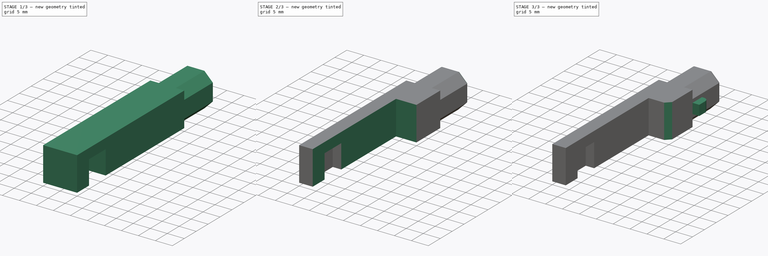
[diagram: build sequence overview — one tinted view per stage of 3, left to right]
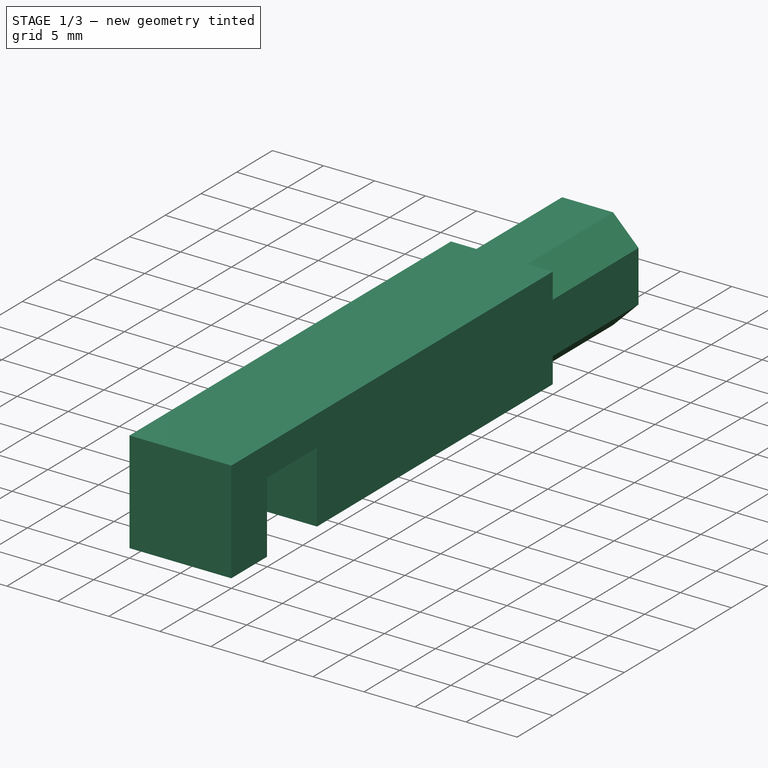
[diagram: stage 1 of 3 — iso view after this stage's code; geometry added in this stage tinted green]
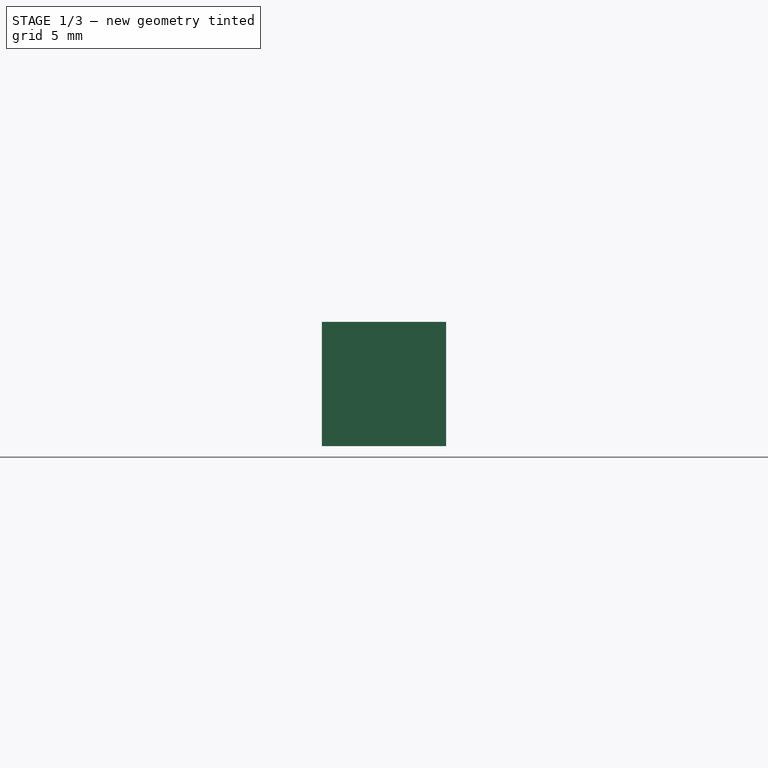
[diagram: stage 1 of 3 — front view after this stage's code; geometry added in this stage tinted green]
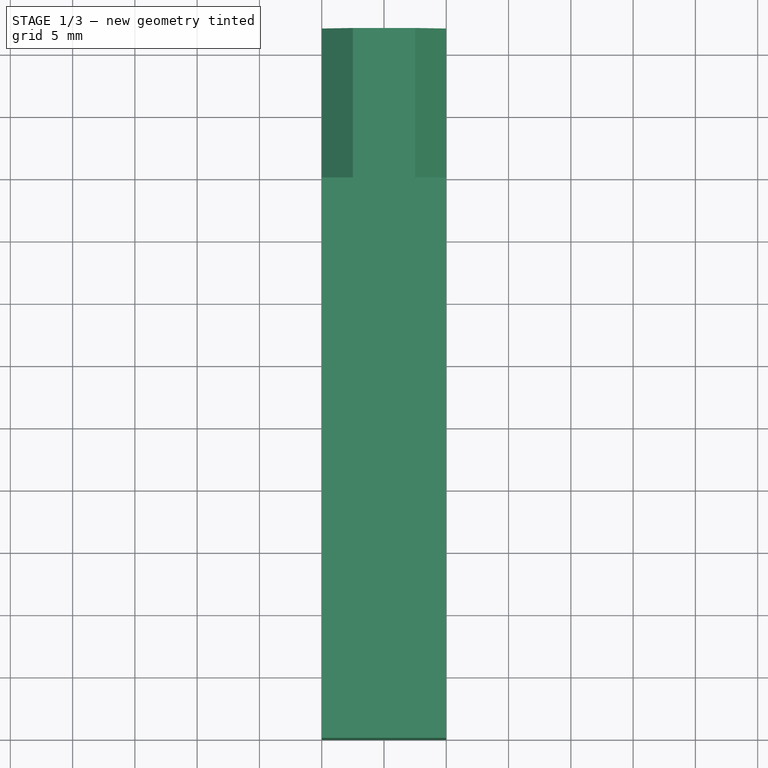
[diagram: stage 1 of 3 — top view after this stage's code; geometry added in this stage tinted green]
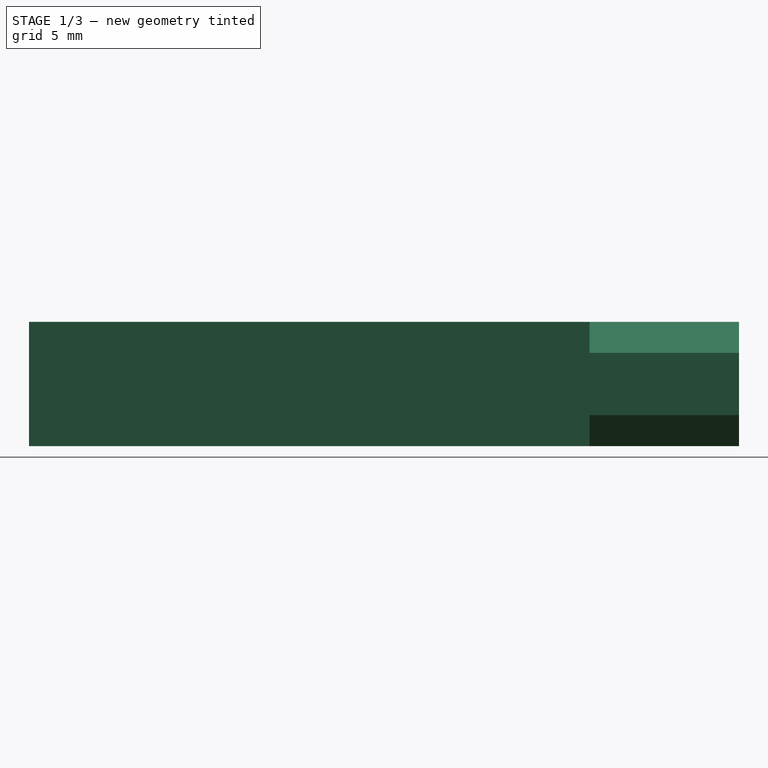
[diagram: stage 1 of 3 — right view after this stage's code; geometry added in this stage tinted green]
FCSTD DOCUMENT  (FreeCAD 2022.1112R26244 +5306 (Git))
Label: PowerSwitch
License: All rights reserved
objects: Sketcher::SketchObject×5, PartDesign::Pad×3, PartDesign::Pocket×2, PartDesign::Fillet×2, PartDesign::Chamfer×1, PartDesign::Body×1, App::Part×1
note: 35 computed .brp shape members not serialized (recipe doc carries the construction recipe); baked Part::Feature solids carry a one-line shape summary decoded from their .brp

FEATURE [Sketcher::SketchObject] Sketch
  ArcFitTolerance = 1e-06
  AttachmentSupport = -> [XZ_Plane]
  ExternalBSplineMaxDegree = 5
  ExternalBSplineTolerance = 0.0001
  FullyConstrained = true
  InternalTolerance = 1e-06
  MakeInternals = false
  MapMode = 5
  Placement = pos=(0,0,0) rot=(1,0,0;1.5708rad)
  Support = -> [XZ_Plane]
  TreeRank = 14
  sketch-geometry (5):
    g0: LineSegment StartX=-4.99 StartY=-4.99 StartZ=0 EndX=-4.99 EndY=4.99 EndZ=0
    g1: LineSegment StartX=-4.99 StartY=4.99 StartZ=0 EndX=4.99 EndY=4.99 EndZ=0
    g2: LineSegment StartX=4.99 StartY=4.99 StartZ=0 EndX=4.99 EndY=-4.99 EndZ=0
    g3: LineSegment StartX=4.99 StartY=-4.99 StartZ=0 EndX=-4.99 EndY=-4.99 EndZ=0
    g4: GeomPoint [constr] X=0 Y=0 Z=0
  constraints (12):
    c: Coincident(g0,g1)
    c: Coincident(g1,g2)
    c: Coincident(g2,g3)
    c: Coincident(g3,g0)
    c: Horizontal(g1)
    c: Horizontal(g3)
    c: Vertical(g0)
    c: Vertical(g2)
    c: Symmetric(g1,g0,g4)
    c: Coincident(g4,g-1)
    c: DistanceX(g1,g1) = 9.98
    c: DistanceY(g0,g0) = 9.98
FEATURE [PartDesign::Pad] Pad  label="Slider"
  AddSubType = 0
  AlongSketchNormal = false
  AutoTaperInnerAngle = true
  CheckUpToFaceLimits = true
  ClaimChildren = false
  Direction = (0,-1,0)
  Fit = 0
  FitJoin = 0
  InnerFit = 0
  InnerFitJoin = 0
  Length = 45
  Length2 = 100
  Linearize = true
  NewSolid = false
  Profile = -> Sketch
  Suppress = false
  TaperInnerAngle = 0
  TaperInnerAngleRev = 0
  TreeRank = 15
  Type = 0
  _ProfileBasedVersion = 1
FEATURE [Sketcher::SketchObject] Sketch001
  ArcFitTolerance = 1e-06
  AttachmentSupport = -> [Pad]
  ExternalBSplineMaxDegree = 5
  ExternalBSplineTolerance = 0.0001
  ExternalGeometry = -> [Pad]
  FullyConstrained = true
  InternalTolerance = 1e-06
  MakeInternals = false
  MapMode = 5
  Placement = pos=(4.99,0,0) rot=(0.57735,0.57735,0.57735;2.0944rad)
  Support = -> [Pad]
  TreeRank = 16
  sketch-geometry (4):
    g0: LineSegment StartX=-40 StartY=-4.99 StartZ=0 EndX=-40 EndY=2.01 EndZ=0
    g1: LineSegment StartX=-33 StartY=2.01 StartZ=0 EndX=-33 EndY=-4.99 EndZ=0
    g2: LineSegment StartX=-40 StartY=2.01 StartZ=0 EndX=-33 EndY=2.01 EndZ=0
    g3: LineSegment StartX=-33 StartY=-4.99 StartZ=0 EndX=-40 EndY=-4.99 EndZ=0
  constraints (13):
    c: PointOnObject(g0,g-4)
    c: Vertical(g0)
    c: PointOnObject(g1,g-4)
    c: Vertical(g1)
    c: DistanceX(g1,g-4) = 33
    c: DistanceX(g0,g-4) = 40
    c: Coincident(g2,g0)
    c: Coincident(g2,g1)
    c: Horizontal(g2)
    c: Coincident(g3,g1)
    c: Coincident(g3,g0)
    c: DistanceY(g0,g0) = 7
    c: DistanceX(g2,g2) = 7
FEATURE [PartDesign::Pocket] Pocket  label="PowerSwitchHole"
  AddSubType = 1
  AutoTaperInnerAngle = true
  BaseFeature = -> Pad
  CheckUpToFaceLimits = true
  ClaimChildren = false
  Fit = 0
  FitJoin = 0
  InnerFit = 0
  InnerFitJoin = 0
  Length = 8.5
  Length2 = 100
  Linearize = true
  NewSolid = false
  Profile = -> Sketch001
  Suppress = false
  TaperInnerAngle = 0
  TaperInnerAngleRev = 0
  TreeRank = 17
  Type = 0
  _ProfileBasedVersion = 1
  _Version = 1
FEATURE [Sketcher::SketchObject] Sketch002
  ArcFitTolerance = 1e-06
  AttachmentSupport = -> [Pocket]
  ExternalBSplineMaxDegree = 5
  ExternalBSplineTolerance = 0.0001
  ExternalGeometry = -> [Pocket]
  FullyConstrained = true
  InternalTolerance = 1e-06
  MakeInternals = false
  MapMode = 5
  Placement = pos=(0,0,0) rot=(0,0.707107,0.707107;3.14159rad)
  Support = -> [Pocket]
  TreeRank = 18
  sketch-geometry (8):
    g0: LineSegment StartX=-4.99 StartY=2.5 StartZ=0 EndX=-2.5 EndY=4.99 EndZ=0
    g1: LineSegment StartX=-2.5 StartY=4.99 StartZ=0 EndX=2.5 EndY=4.99 EndZ=0
    g2: LineSegment StartX=2.5 StartY=4.99 StartZ=0 EndX=4.99 EndY=2.5 EndZ=0
    g3: LineSegment StartX=4.99 StartY=2.5 StartZ=0 EndX=4.99 EndY=-2.5 EndZ=0
    g4: LineSegment StartX=4.99 StartY=-2.5 StartZ=0 EndX=2.5 EndY=-4.99 EndZ=0
    g5: LineSegment StartX=2.5 StartY=-4.99 StartZ=0 EndX=-2.5 EndY=-4.99 EndZ=0
    g6: LineSegment StartX=-2.5 StartY=-4.99 StartZ=0 EndX=-4.99 EndY=-2.5 EndZ=0
    g7: LineSegment StartX=-4.99 StartY=-2.5 StartZ=0 EndX=-4.99 EndY=2.5 EndZ=0
  constraints (23):
    c: PointOnObject(g0,g-6)
    c: PointOnObject(g0,g-3)
    c: Coincident(g1,g0)
    c: PointOnObject(g1,g-3)
    c: Coincident(g2,g1)
    c: PointOnObject(g2,g-5)
    c: Coincident(g3,g2)
    c: PointOnObject(g3,g-5)
    c: Coincident(g4,g3)
    c: PointOnObject(g4,g-4)
    c: Coincident(g5,g4)
    c: PointOnObject(g5,g-4)
    c: Coincident(g6,g5)
    c: Coincident(g7,g6)
    c: Coincident(g7,g0)
    c: Equal(g7,g1)
    c: Equal(g1,g3)
    c: Equal(g3,g5)
    c: Equal(g0,g2)
    c: Equal(g2,g4)
    c: Equal(g4,g6)
    c: Symmetric(g0,g6,g-1)
    c: DistanceX(g1,g1) = 5
FEATURE [PartDesign::Pad] Pad001  label="HandGrab"
  AddSubType = 0
  AlongSketchNormal = false
  AutoTaperInnerAngle = true
  BaseFeature = -> Pocket
  CheckUpToFaceLimits = true
  ClaimChildren = false
  Direction = (0,1,2e-16)
  Fit = 0
  FitJoin = 0
  InnerFit = 0
  InnerFitJoin = 0
  Length = 12
  Length2 = 100
  Linearize = true
  NewSolid = false
  Profile = -> Sketch002
  Suppress = false
  TaperInnerAngle = 0
  TaperInnerAngleRev = 0
  TreeRank = 19
  Type = 0
  _ProfileBasedVersion = 1
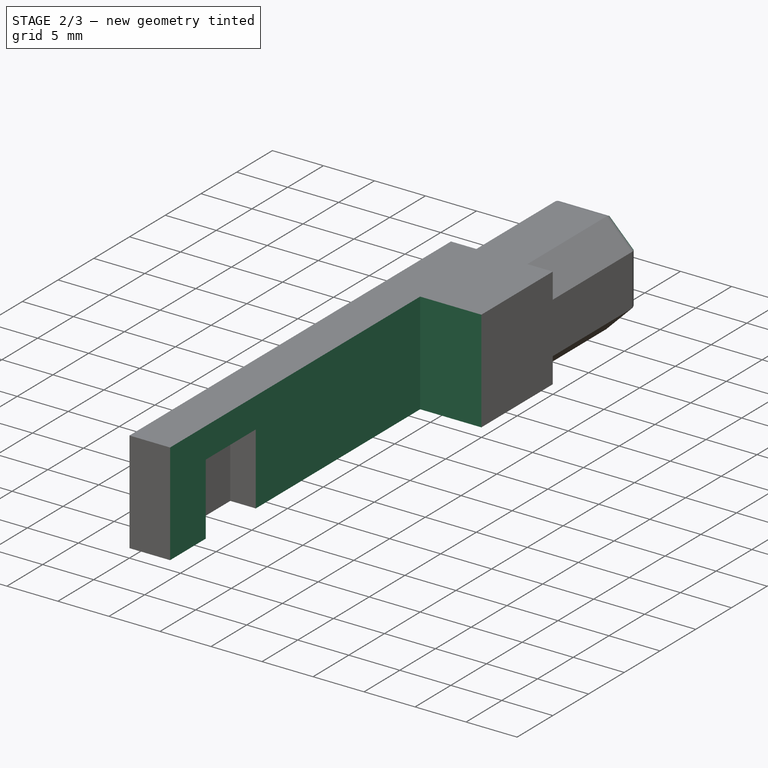
[diagram: stage 2 of 3 — iso view after this stage's code; geometry added in this stage tinted green]
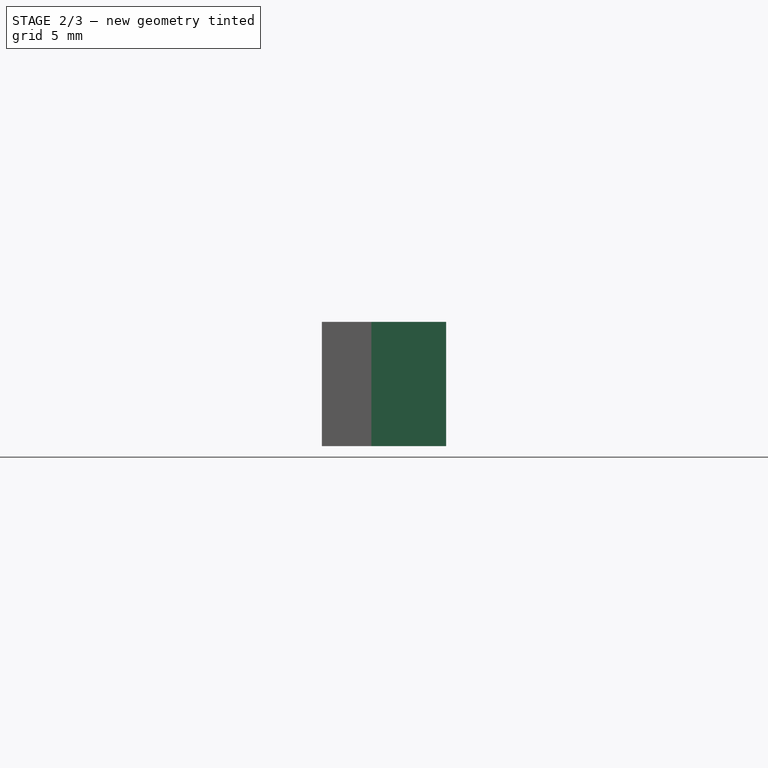
[diagram: stage 2 of 3 — front view after this stage's code; geometry added in this stage tinted green]
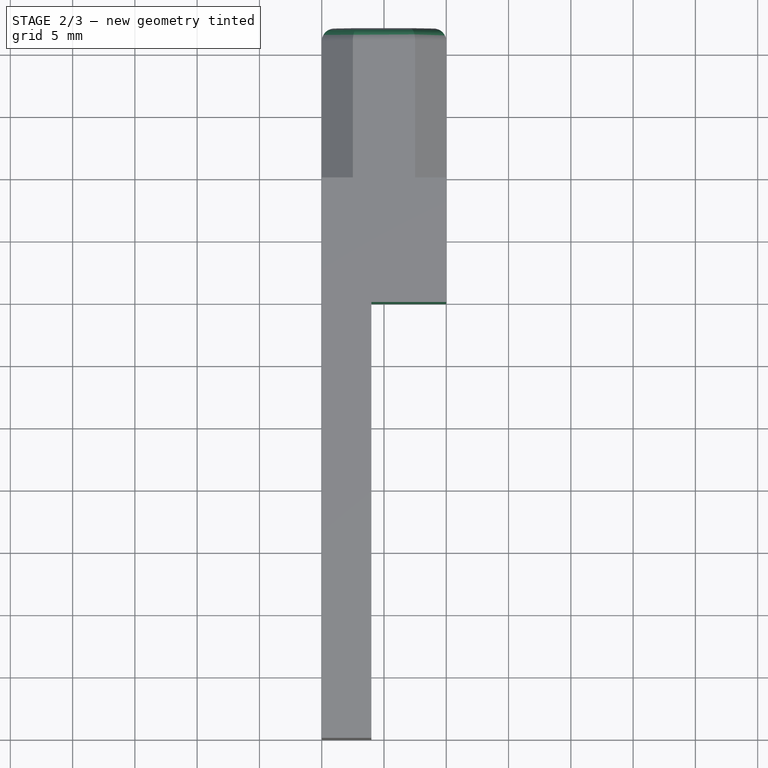
[diagram: stage 2 of 3 — top view after this stage's code; geometry added in this stage tinted green]
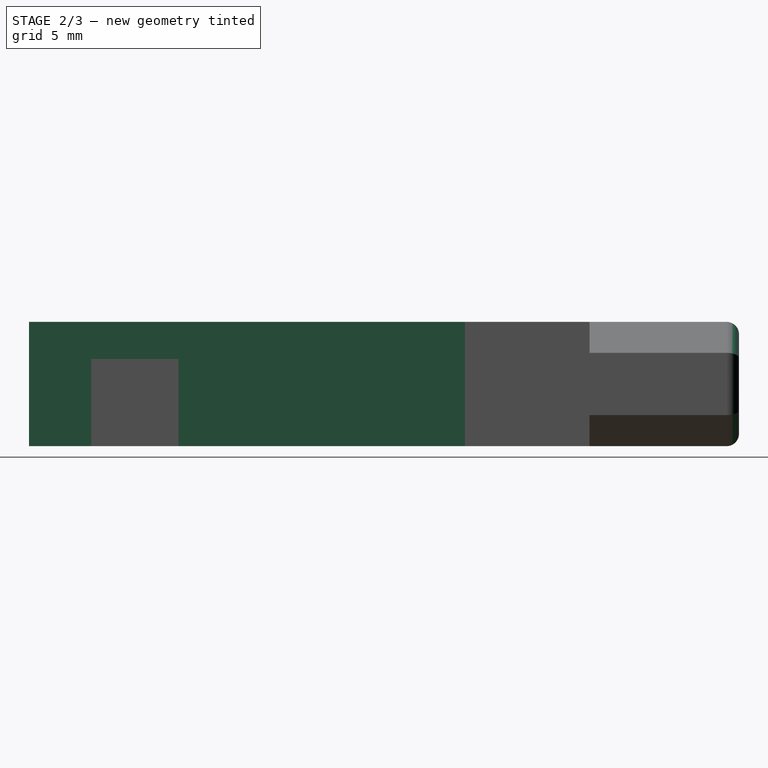
[diagram: stage 2 of 3 — right view after this stage's code; geometry added in this stage tinted green]
FEATURE [PartDesign::Fillet] Fillet
  AddSubType = 0
  Base = -> Pad001 [Face18]
  BaseFeature = -> Pad001
  NewSolid = false
  Radius = 1
  SupportTransform = false
  Suppress = false
  TreeRank = 20
FEATURE [Sketcher::SketchObject] Sketch004
  ArcFitTolerance = 1e-06
  ExternalBSplineMaxDegree = 5
  ExternalBSplineTolerance = 0.0001
  ExternalGeometry = -> [Fillet]
  FullyConstrained = true
  InternalTolerance = 1e-06
  MakeInternals = false
  MapMode = 5
  Placement = pos=(4.99,0,0) rot=(0.57735,0.57735,0.57735;2.0944rad)
  TreeRank = 24
  sketch-geometry (4):
    g0: LineSegment StartX=-45 StartY=-4.99 StartZ=0 EndX=-10 EndY=-4.99 EndZ=0
    g1: LineSegment StartX=-10 StartY=-4.99 StartZ=0 EndX=-10 EndY=4.99 EndZ=0
    g2: LineSegment StartX=-10 StartY=4.99 StartZ=0 EndX=-45 EndY=4.99 EndZ=0
    g3: LineSegment StartX=-45 StartY=4.99 StartZ=0 EndX=-45 EndY=-4.99 EndZ=0
  constraints (10):
    c: Coincident(g0,g1)
    c: Coincident(g1,g2)
    c: Coincident(g2,g3)
    c: Coincident(g3,g0)
    c: Horizontal(g0)
    c: Horizontal(g2)
    c: Vertical(g1)
    c: Coincident(g0,g-4)
    c: DistanceX(g1,g-3) = 10
    c: Coincident(g2,g-3)
FEATURE [PartDesign::Pocket] Pocket002  label="HoleOffset"
  AddSubType = 1
  AutoTaperInnerAngle = true
  BaseFeature = -> Fillet
  CheckUpToFaceLimits = true
  ClaimChildren = false
  Fit = 0
  FitJoin = 0
  InnerFit = 0
  InnerFitJoin = 0
  Length = 6
  Length2 = 100
  Linearize = true
  NewSolid = false
  Profile = -> Sketch004
  Suppress = false
  TaperInnerAngle = 0
  TaperInnerAngleRev = 0
  TreeRank = 25
  Type = 0
  _ProfileBasedVersion = 1
  _Version = 1
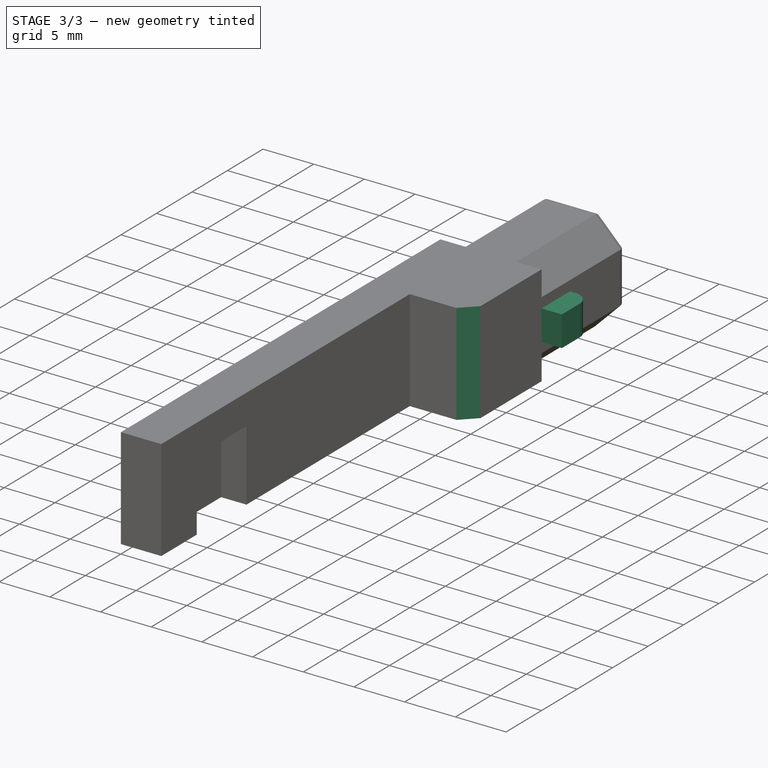
[diagram: stage 3 of 3 — iso view after this stage's code; geometry added in this stage tinted green]
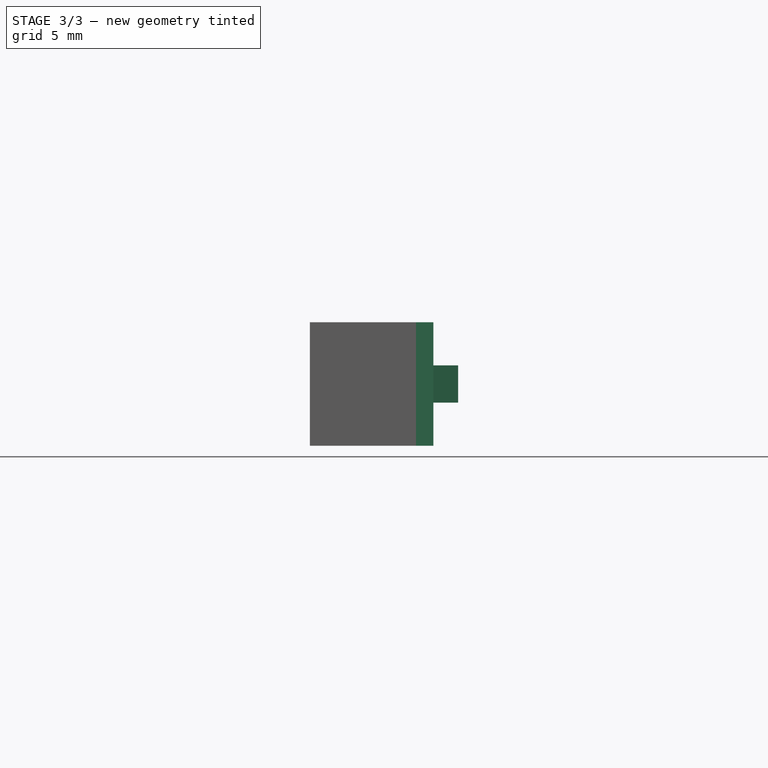
[diagram: stage 3 of 3 — front view after this stage's code; geometry added in this stage tinted green]
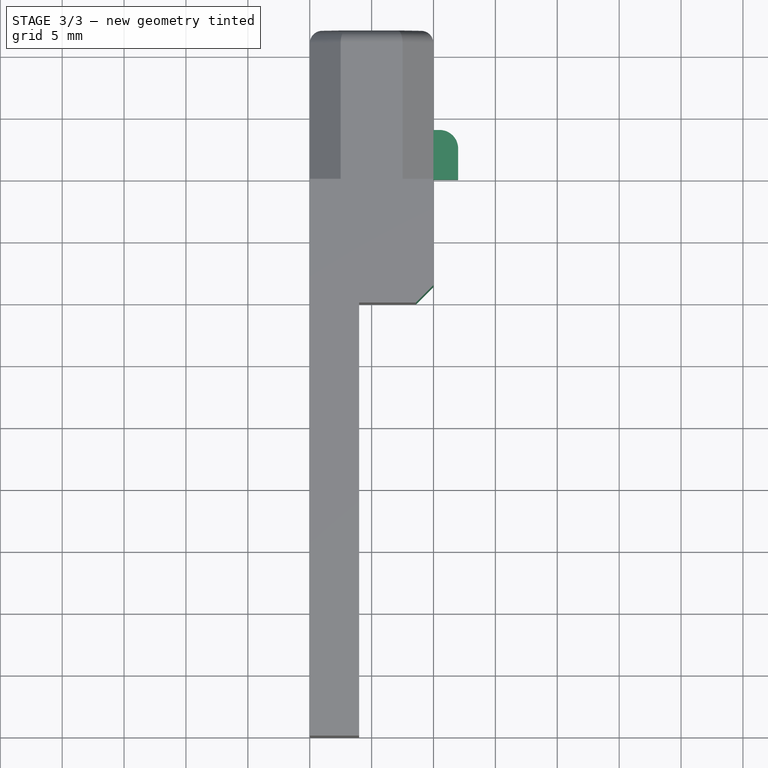
[diagram: stage 3 of 3 — top view after this stage's code; geometry added in this stage tinted green]
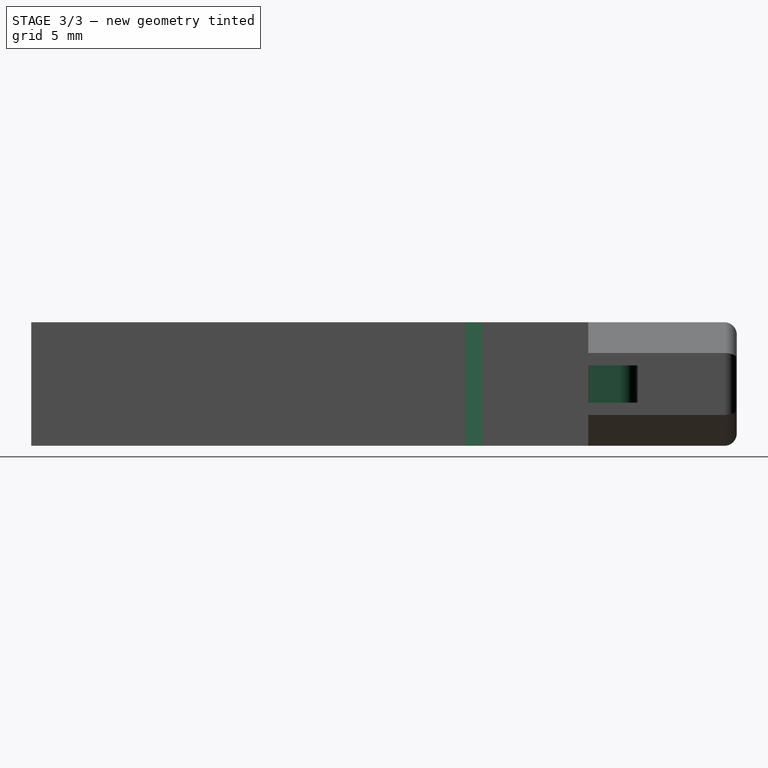
[diagram: stage 3 of 3 — right view after this stage's code; geometry added in this stage tinted green]
FEATURE [PartDesign::Chamfer] Chamfer
  AddSubType = 0
  Angle = 45
  Base = -> Pocket002 [Edge71]
  BaseFeature = -> Pocket002
  ChamferType = 0
  FlipDirection = false
  NewSolid = false
  Size = 1.4
  Size2 = 1
  SupportTransform = false
  Suppress = false
  TreeRank = 26
FEATURE [Sketcher::SketchObject] Sketch005
  ArcFitTolerance = 1e-06
  AttachmentSupport = -> [XZ_Plane]
  ExternalBSplineMaxDegree = 5
  ExternalBSplineTolerance = 0.0001
  ExternalGeometry = -> [Chamfer]
  FullyConstrained = true
  InternalTolerance = 1e-06
  MakeInternals = false
  MapMode = 5
  Placement = pos=(0,0,0) rot=(1,0,0;1.5708rad)
  Support = -> [XZ_Plane]
  TreeRank = 27
  sketch-geometry (5):
    g0: LineSegment StartX=4.99 StartY=1.5 StartZ=0 EndX=6.99 EndY=1.5 EndZ=0
    g1: LineSegment StartX=6.99 StartY=1.5 StartZ=0 EndX=6.99 EndY=-1.5 EndZ=0
    g2: LineSegment StartX=6.99 StartY=-1.5 StartZ=0 EndX=4.99 EndY=-1.5 EndZ=0
    g3: LineSegment StartX=4.99 StartY=-1.5 StartZ=0 EndX=4.99 EndY=-2e-16 EndZ=0
    g4: LineSegment StartX=4.99 StartY=-1e-16 StartZ=0 EndX=4.99 EndY=1.5 EndZ=0
  constraints (14):
    c: PointOnObject(g0,g-4)
    c: Horizontal(g0)
    c: Coincident(g1,g0)
    c: Vertical(g1)
    c: Coincident(g2,g1)
    c: PointOnObject(g2,g-4)
    c: Horizontal(g2)
    c: Coincident(g3,g2)
    c: Coincident(g4,g3)
    c: Coincident(g4,g0)
    c: Equal(g4,g3)
    c: Symmetric(g-4,g-4,g3)
    c: DistanceY(g1,g1) = 3
    c: DistanceX(g0,g0) = 2
FEATURE [PartDesign::Pad] Pad002  label="StopBloc"
  AddSubType = 0
  AlongSketchNormal = false
  AutoTaperInnerAngle = true
  BaseFeature = -> Chamfer
  CheckUpToFaceLimits = true
  ClaimChildren = false
  Direction = (0,-1,-2e-16)
  Fit = 0
  FitJoin = 0
  InnerFit = 0
  InnerFitJoin = 0
  Length = 4
  Length2 = 100
  Linearize = true
  NewSolid = false
  Profile = -> Sketch005
  Reversed = true
  Suppress = false
  TaperInnerAngle = 0
  TaperInnerAngleRev = 0
  TreeRank = 28
  Type = 0
  _ProfileBasedVersion = 1
FEATURE [PartDesign::Fillet] Fillet001  label="StopBlocFillet"
  AddSubType = 0
  Base = -> Pad002 [Edge76]
  BaseFeature = -> Pad002
  NewSolid = false
  Radius = 1.5
  SupportTransform = false
  Suppress = false
  TreeRank = 29
FEATURE [PartDesign::Body] Body
  AutoGroupSolids = false
  ClaimAllChildren = false
  ExportMode = 0
  Group = -> [Sketch,Pad,Sketch001,Pocket,Sketch002,Pad001,Fillet,Sketch004,Pocket002,Chamfer,Sketch005,Pad002,Fillet001]
  Origin = -> Origin001
  Tip = -> Fillet001
  TreeRank = 13
  _ExportChildren = -> [Pad,Pocket,Pad001,Fillet,Pocket002,Chamfer,Pad002,Fillet001]
  _GroupVersion = 1
FEATURE [App::Part] Part  label="PowerSwitch"
  ClaimAllChildren = false
  ExportMode = 1
  Group = -> [Body]
  Origin = -> Origin
  TreeRank = 3
  _ExportChildren = -> [Body]
  _GroupVersion = 1
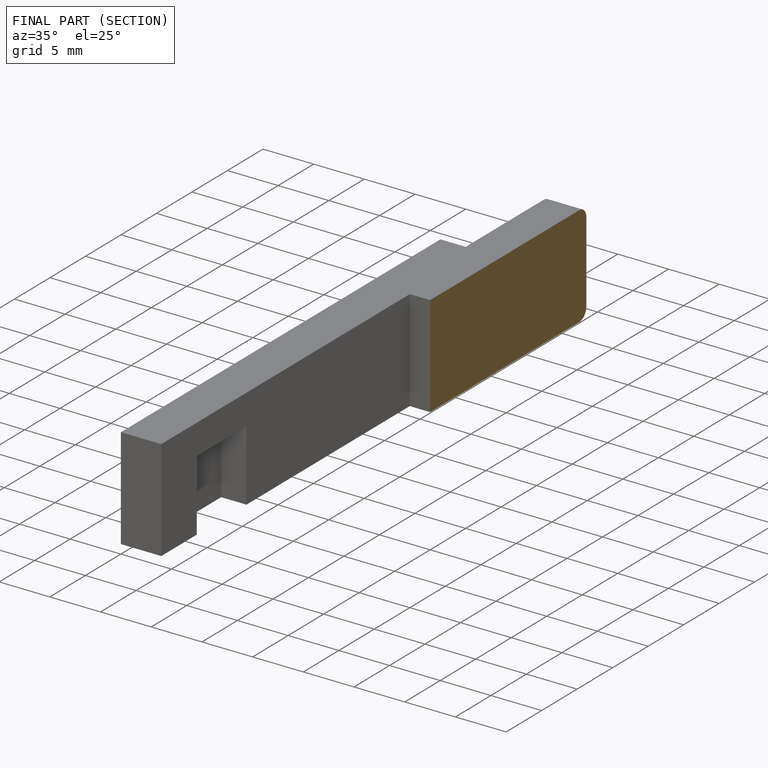
[diagram: finished part — half-section view (interior)]
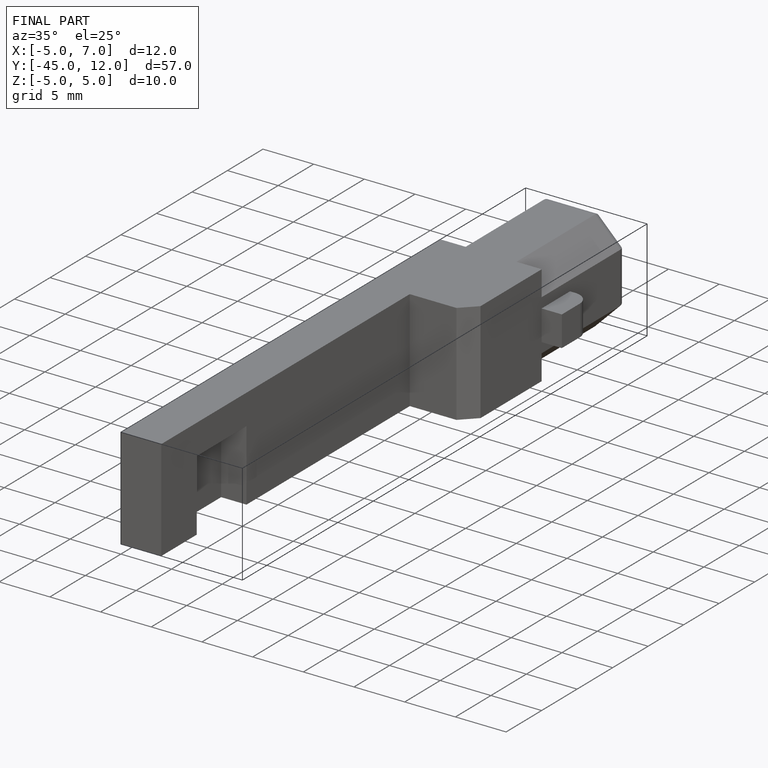
[diagram: finished part — iso view with bounding-box wireframe]
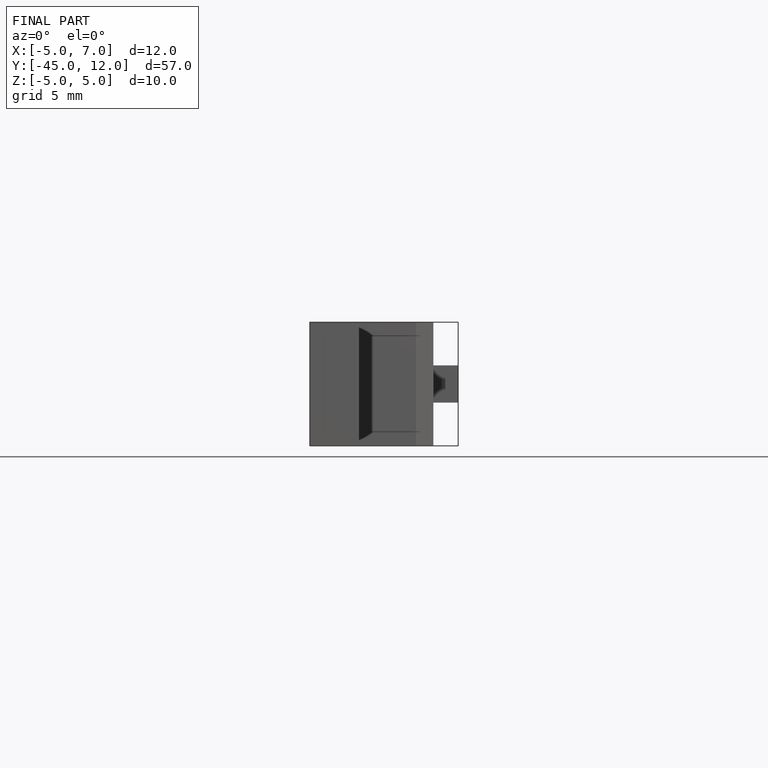
[diagram: finished part — front view with bounding-box wireframe]
